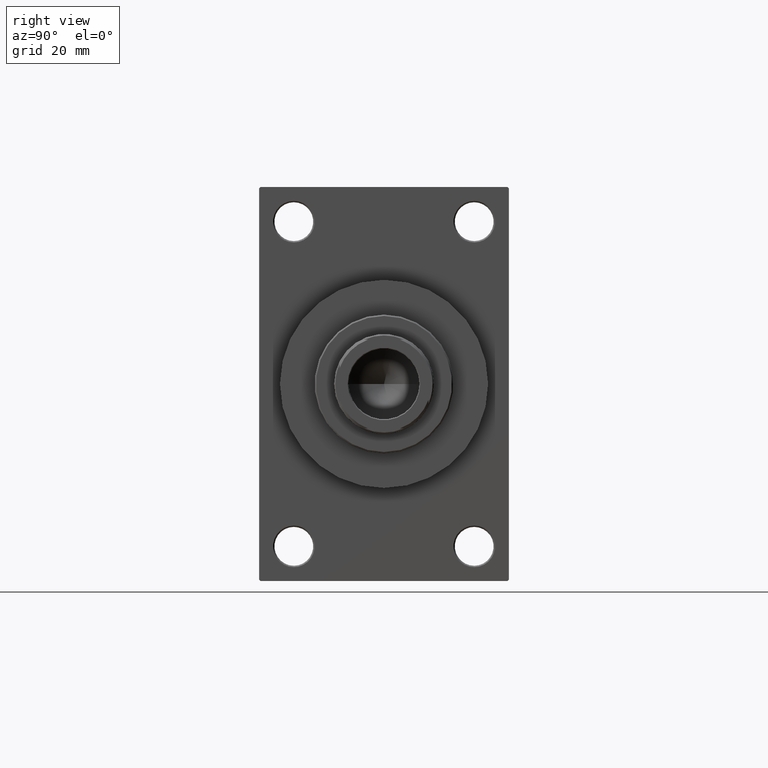
[diagram: clean part render]
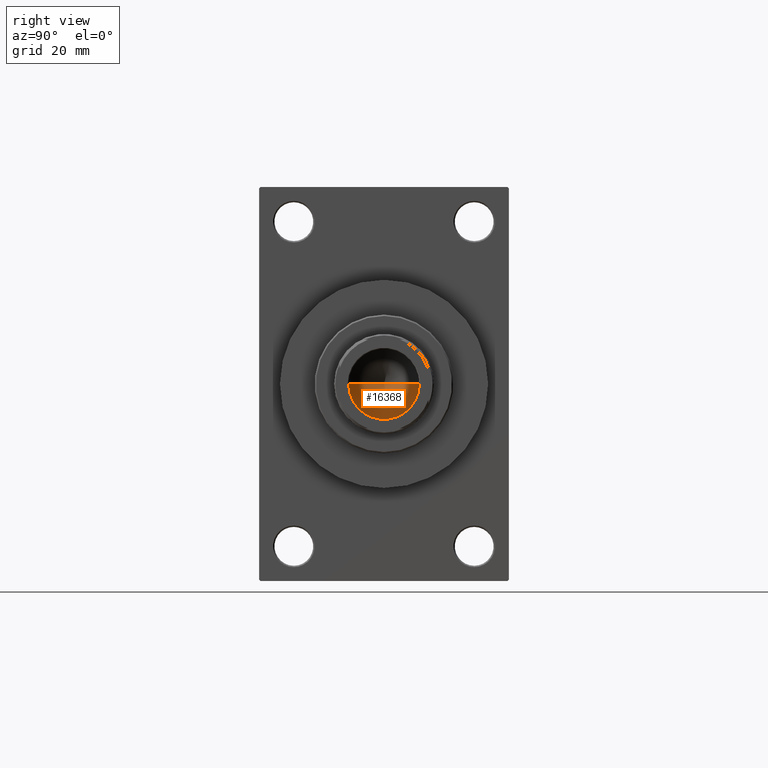
[diagram: same view with one face highlighted and labeled with its STEP entity id]
A machine part, right view. The second image highlights one B-rep face of the part: STEP entity #16368.
In plain terms, the highlighted conical surface has half-angle 59 deg.
Its self-contained STEP definition (entity closure, byte-faithful):
#874 = VERTEX_POINT ( 'NONE', #44021 ) ;
#2386 = EDGE_LOOP ( 'NONE', ( #31508, #33403, #38930 ) ) ;
#2795 = VECTOR ( 'NONE', #7187, 1000.000000000000000 ) ;
#3111 = VERTEX_POINT ( 'NONE', #5916 ) ;
#4181 = CARTESIAN_POINT ( 'NONE',  ( 0.000000000000000000, 0.000000000000000000, 105.0000000000000284 ) ) ;
#5916 = CARTESIAN_POINT ( 'NONE',  ( -1.410643066818227497E-14, 0.000000000000000000, 97.33902710739862130 ) ) ;
#7054 = DIRECTION ( 'NONE',  ( 1.000000000000000000, 0.000000000000000000, 0.000000000000000000 ) ) ;
#7187 = DIRECTION ( 'NONE',  ( -0.8571673007021117785, 1.049727191138617956E-16, 0.5150380749100550437 ) ) ;
#7264 = DIRECTION ( 'NONE',  ( -0.000000000000000000, -0.000000000000000000, 1.000000000000000000 ) ) ;
#9561 = DIRECTION ( 'NONE',  ( 0.8571673007021117785, 0.000000000000000000, 0.5150380749100550437 ) ) ;
#13492 = EDGE_CURVE ( 'NONE', #3111, #32553, #32931, .T. ) ;
#15147 = FACE_OUTER_BOUND ( 'NONE', #2386, .T. ) ;
#16368 = ADVANCED_FACE ( 'NONE', ( #15147 ), #29555, .F. ) ;
#17549 = AXIS2_PLACEMENT_3D ( 'NONE', #39956, #7264, #43074 ) ;
#19724 = EDGE_CURVE ( 'NONE', #874, #32553, #43508, .T. ) ;
#20334 = CARTESIAN_POINT ( 'NONE',  ( -12.74999999999998934, 1.561424668912873928E-15, 105.0000000000000284 ) ) ;
#21185 = EDGE_CURVE ( 'NONE', #3111, #874, #23614, .T. ) ;
#23614 = LINE ( 'NONE', #42261, #38177 ) ;
#29555 = CONICAL_SURFACE ( 'NONE', #43271, 12.74999999999998934, 1.029744258676653423 ) ;
#29697 = DIRECTION ( 'NONE',  ( -0.000000000000000000, -0.000000000000000000, 1.000000000000000000 ) ) ;
#31508 = ORIENTED_EDGE ( 'NONE', *, *, #13492, .F. ) ;
#32553 = VERTEX_POINT ( 'NONE', #20334 ) ;
#32931 = LINE ( 'NONE', #37021, #2795 ) ;
#33403 = ORIENTED_EDGE ( 'NONE', *, *, #21185, .T. ) ;
#37021 = CARTESIAN_POINT ( 'NONE',  ( -12.74999999999998934, 1.561424668912873928E-15, 105.0000000000000284 ) ) ;
#38177 = VECTOR ( 'NONE', #9561, 1000.000000000000000 ) ;
#38930 = ORIENTED_EDGE ( 'NONE', *, *, #19724, .T. ) ;
#39956 = CARTESIAN_POINT ( 'NONE',  ( 0.000000000000000000, 0.000000000000000000, 105.0000000000000284 ) ) ;
#42261 = CARTESIAN_POINT ( 'NONE',  ( 12.74999999999998934, 0.000000000000000000, 105.0000000000000284 ) ) ;
#43074 = DIRECTION ( 'NONE',  ( 1.000000000000000000, 0.000000000000000000, 0.000000000000000000 ) ) ;
#43271 = AXIS2_PLACEMENT_3D ( 'NONE', #4181, #29697, #7054 ) ;
#43508 = CIRCLE ( 'NONE', #17549, 12.74999999999998934 ) ;
#44021 = CARTESIAN_POINT ( 'NONE',  ( 12.74999999999998934, 0.000000000000000000, 105.0000000000000284 ) ) ;